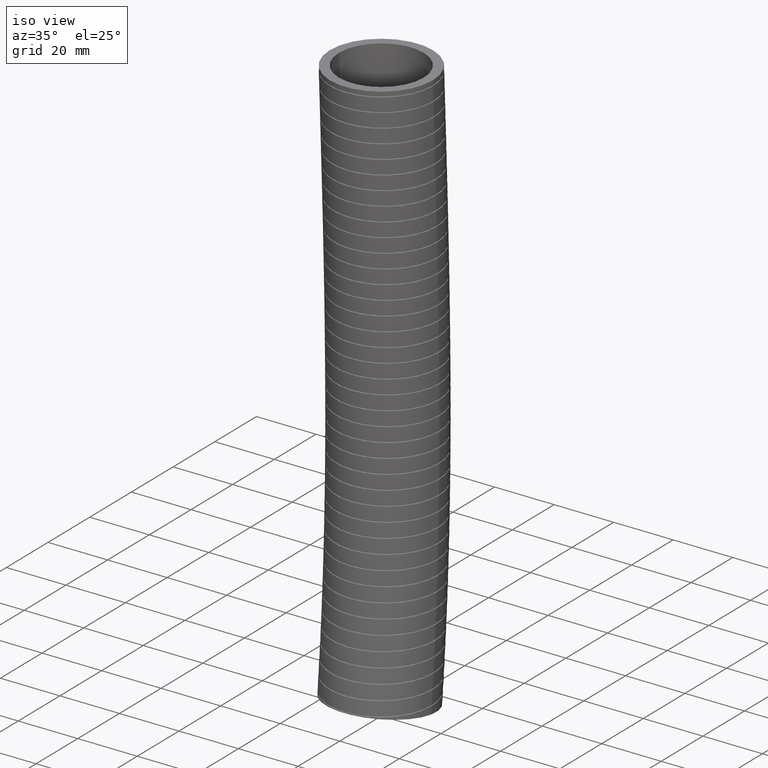
[diagram: clean part render]
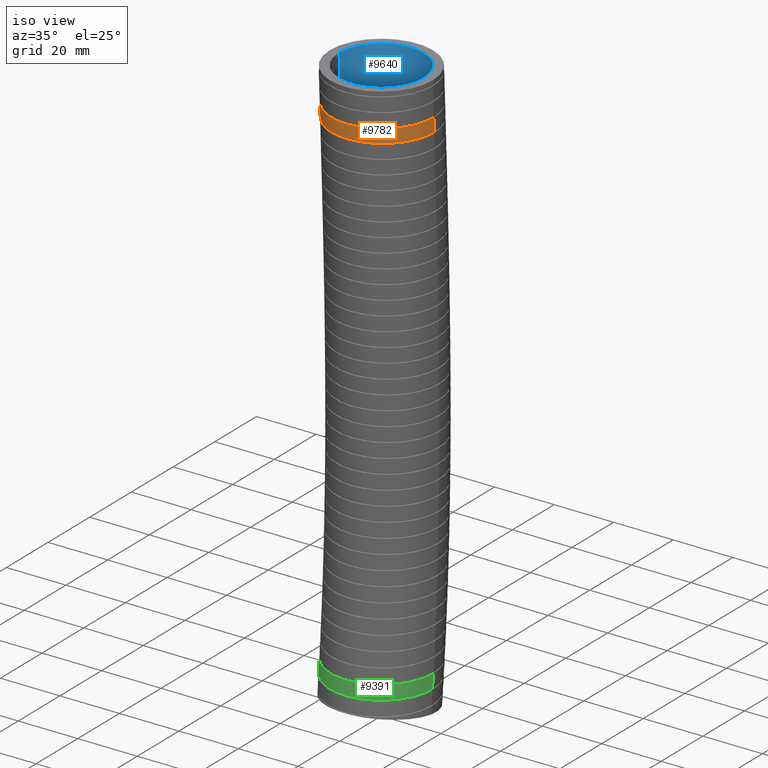
[diagram: same view with three faces highlighted in distinct colors, each labeled with its STEP entity id]
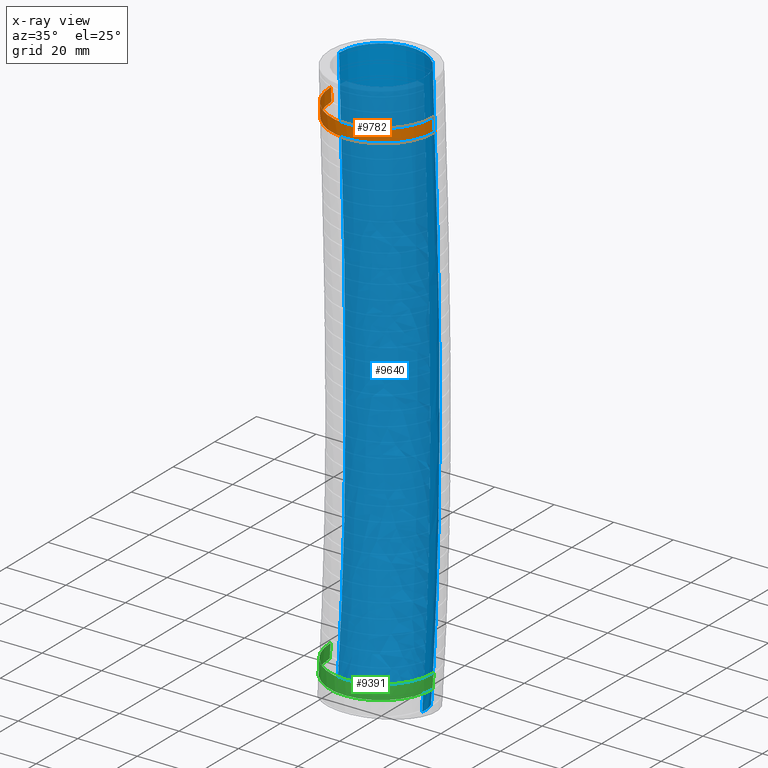
[diagram: x-ray of the same camera — body ghosted, the three highlighted faces saturated]
A machine part, iso view with three faces highlighted in distinct colors.
The next image is the same camera in x-ray (body ghosted, the three faces saturated) — at least one of them is partly hidden behind the body in this view.
Their STEP definitions:

[orange] entity #9782 — the highlighted face is a freeform B-spline surface patch.
#9770 = EDGE_CURVE ( 'NONE', #9779, #9855, #12664, .T. ) ;
#9771 = ORIENTED_EDGE ( 'NONE', *, *, #9776, .T. ) ;
#9772 = VERTEX_POINT ( 'NONE', #12719 ) ;
#9773 = ORIENTED_EDGE ( 'NONE', *, *, #9774, .T. ) ;
#9774 = EDGE_CURVE ( 'NONE', #9772, #9855, #12718, .T. ) ;
#9776 = EDGE_CURVE ( 'NONE', #9777, #9772, #12738, .T. ) ;
#9777 = VERTEX_POINT ( 'NONE', #12740 ) ;
#9778 = ORIENTED_EDGE ( 'NONE', *, *, #9780, .T. ) ;
#9779 = VERTEX_POINT ( 'NONE', #12739 ) ;
#9780 = EDGE_CURVE ( 'NONE', #9779, #9777, #12731, .T. ) ;
#9781 = EDGE_LOOP ( 'NONE', ( #9778, #9771, #9773, #9854 ) ) ;
#9782 = ADVANCED_FACE ( 'NONE', ( #12732 ), #12804, .T. ) ;
#9854 = ORIENTED_EDGE ( 'NONE', *, *, #9770, .F. ) ;
#9855 = VERTEX_POINT ( 'NONE', #14004 ) ;
#12218 = CARTESIAN_POINT ( 'NONE',  ( 0.6799999999999999400, 0.02779308123059746200, -0.6294462256570050300 ) ) ;
#12219 = CARTESIAN_POINT ( 'NONE',  ( 0.6799999999999999400, 0.02518663825251792100, -0.5695073967831598700 ) ) ;
#12224 = CARTESIAN_POINT ( 'NONE',  ( 0.6799999999999999400, 0.02256296003072200500, -0.5095678380935743100 ) ) ;
#12660 = CARTESIAN_POINT ( 'NONE',  ( 0.6799999999999999400, 0.01992697036791764600, -0.4496277580836141000 ) ) ;
#12664 = B_SPLINE_CURVE_WITH_KNOTS ( 'NONE', 3,
 ( #12660, #12224, #12219, #12218 ),
 .UNSPECIFIED., .F., .F.,
 ( 4, 4 ),
 ( 0.05927459239259669200, 0.08298070432547226300 ),
 .UNSPECIFIED. ) ;
#12682 = CARTESIAN_POINT ( 'NONE',  ( 0.4490832750532290900, -0.4847781656680695300, -0.6294462256569874900 ) ) ;
#12683 = CARTESIAN_POINT ( 'NONE',  ( 0.4148422961613814600, -0.5128644578127045100, -0.6294462256569868200 ) ) ;
#12684 = CARTESIAN_POINT ( 'NONE',  ( 0.3593694856400778100, -0.5499421772307190300, -0.6294462256569871600 ) ) ;
#12685 = CARTESIAN_POINT ( 'NONE',  ( 0.3400844115950525400, -0.5615067836964386900, -0.6294462256569873800 ) ) ;
#12686 = CARTESIAN_POINT ( 'NONE',  ( 0.3006078649715225900, -0.5825911508151058200, -0.6294462256569874900 ) ) ;
#12687 = CARTESIAN_POINT ( 'NONE',  ( 0.2804922200822254600, -0.5920857815798613600, -0.6294462256569868200 ) ) ;
#12688 = CARTESIAN_POINT ( 'NONE',  ( 0.2190447455636216600, -0.6175146647934306500, -0.6294462256569871600 ) ) ;
#12689 = CARTESIAN_POINT ( 'NONE',  ( 0.1766229336233708100, -0.6304232150329323000, -0.6294462256569877100 ) ) ;
#12690 = CARTESIAN_POINT ( 'NONE',  ( 0.1107376500968648100, -0.6435331015206950900, -0.6294462256569878200 ) ) ;
#12691 = CARTESIAN_POINT ( 'NONE',  ( 0.08851877295027432700, -0.6468174220725256800, -0.6294462256569878200 ) ) ;
#12692 = CARTESIAN_POINT ( 'NONE',  ( 0.04426765888311814300, -0.6511589084635891500, -0.6294462256569874900 ) ) ;
#12693 = CARTESIAN_POINT ( 'NONE',  ( -1.799952263858870900E-006, -0.6533163837076277900, -0.6294462256569877100 ) ) ;
#12694 = CARTESIAN_POINT ( 'NONE',  ( -0.04430751421283777400, -0.6511575191777250200, -0.6294462256569877100 ) ) ;
#12695 = CARTESIAN_POINT ( 'NONE',  ( -0.08863166418253415300, -0.6468038166577072500, -0.6294462256569878200 ) ) ;
#12696 = CARTESIAN_POINT ( 'NONE',  ( -0.1109249916365406400, -0.6435003727500451200, -0.6294462256569878200 ) ) ;
#12697 = CARTESIAN_POINT ( 'NONE',  ( -0.1766490131894011000, -0.6304088868941326600, -0.6294462256569878200 ) ) ;
#12698 = CARTESIAN_POINT ( 'NONE',  ( -0.2190437097763431900, -0.6175178411150883400, -0.6294462256569878200 ) ) ;
#12699 = CARTESIAN_POINT ( 'NONE',  ( -0.2805466825581863800, -0.5920618676585588400, -0.6294462256569878200 ) ) ;
#12700 = CARTESIAN_POINT ( 'NONE',  ( -0.3006970199978764000, -0.5825493930654219700, -0.6294462256569878200 ) ) ;
#12701 = CARTESIAN_POINT ( 'NONE',  ( -0.3402725735662930400, -0.5614003856309052200, -0.6294462256569877100 ) ) ;
#12702 = CARTESIAN_POINT ( 'NONE',  ( -0.3594501177668760200, -0.5498907714752021600, -0.6294462256569877100 ) ) ;
#12703 = CARTESIAN_POINT ( 'NONE',  ( -0.4148392366866166000, -0.5128615154497463400, -0.6294462256569879300 ) ) ;
#12704 = CARTESIAN_POINT ( 'NONE',  ( -0.4490929580019513100, -0.4847769163397763800, -0.6294462256569873800 ) ) ;
#12705 = CARTESIAN_POINT ( 'NONE',  ( -0.4964156950202832700, -0.4374896702113167900, -0.6294462256569874900 ) ) ;
#12706 = CARTESIAN_POINT ( 'NONE',  ( -0.5115641969656090600, -0.4207795941523687600, -0.6294462256569881600 ) ) ;
#12707 = CARTESIAN_POINT ( 'NONE',  ( -0.5398566089380274500, -0.3862933316505916500, -0.6294462256569881600 ) ) ;
#12708 = CARTESIAN_POINT ( 'NONE',  ( -0.5530728788073698800, -0.3684580017110121700, -0.6294462256569874900 ) ) ;
#12709 = CARTESIAN_POINT ( 'NONE',  ( -0.5899896865342197900, -0.3132122279413209200, -0.6294462256569877100 ) ) ;
#12710 = CARTESIAN_POINT ( 'NONE',  ( -0.6110161245962724100, -0.2740043131806800300, -0.6294462256569878200 ) ) ;
#12711 = CARTESIAN_POINT ( 'NONE',  ( -0.6453789839691023200, -0.1910778536466995700, -0.6294462256569874900 ) ) ;
#12712 = CARTESIAN_POINT ( 'NONE',  ( -0.6582185390639737600, -0.1485994830063240300, -0.6294462256569874900 ) ) ;
#12713 = CARTESIAN_POINT ( 'NONE',  ( -0.6712110563530141500, -0.08341673032555842200, -0.6294462256569873800 ) ) ;
#12714 = CARTESIAN_POINT ( 'NONE',  ( -0.6744897200703062800, -0.06144314492777706900, -0.6294462256569872700 ) ) ;
#12715 = CARTESIAN_POINT ( 'NONE',  ( -0.6788911976217521000, -0.01699193116940601900, -0.6294462256569872700 ) ) ;
#12716 = CARTESIAN_POINT ( 'NONE',  ( -0.6800000000000001600, 0.005521057326932862100, -0.6294462256569878200 ) ) ;
#12717 = CARTESIAN_POINT ( 'NONE',  ( -0.6799999999999999400, 0.02779308123059603300, -0.6294462256569877100 ) ) ;
#12718 = B_SPLINE_CURVE_WITH_KNOTS ( 'NONE', 3,
 ( #12717, #12716, #12715, #12714, #12713, #12712, #12711, #12710, #12709, #12708, #12707, #12706, #12705, #12704, #12703, #12702, #12701, #12700, #12699, #12698, #12697, #12696, #12695, #12694, #12693, #12692, #12691, #12690, #12689, #12688, #12687, #12686, #12685, #12684, #12683, #12682, #12755, #12754, #12753, #12752, #12751, #12750, #12749, #12748, #12747, #12746, #12745, #12744, #12743, #12742, #12741 ),
 .UNSPECIFIED., .F., .F.,
 ( 4, 2, 2, 2, 2, 2, 2, 2, 2, 2, 2, 2, 1, 2, 2, 2, 2, 2, 2, 2, 2, 2, 2, 2, 2, 4 ),
 ( 0.05457858651247898100, 0.05628426486145347900, 0.05798994321042798300, 0.06140129990837698400, 0.06481265660632598600, 0.06651833495530049000, 0.06822401330427498000, 0.07163537000222397500, 0.07334104835119847900, 0.07504672670017298300, 0.07845808339812197800, 0.08016376174709648200, 0.08186944009607097200, 0.08357511844504547600, 0.08528079679401998100, 0.08869215349196896100, 0.09039783184094346600, 0.09210351018991797000, 0.09551486688786695000, 0.09722054523684145500, 0.09892622358581594500, 0.1023375802837649300, 0.1040432586327394200, 0.1057489369817139200, 0.1074546153306884000, 0.1091602936796628900 ),
 .UNSPECIFIED. ) ;
#12719 = CARTESIAN_POINT ( 'NONE',  ( -0.6799999999999999400, 0.02779308123059603300, -0.6294462256569877100 ) ) ;
#12720 = CARTESIAN_POINT ( 'NONE',  ( 0.6099869724849380500, -0.2814442650780886200, -0.4496277580836047200 ) ) ;
#12721 = CARTESIAN_POINT ( 'NONE',  ( 0.6195155729626082900, -0.2613163356340988400, -0.4496277580836047800 ) ) ;
#12722 = CARTESIAN_POINT ( 'NONE',  ( 0.6450295814144726400, -0.1998633599014857100, -0.4496277580836048300 ) ) ;
#12723 = CARTESIAN_POINT ( 'NONE',  ( 0.6579722480004569500, -0.1574792380906345500, -0.4496277580836050600 ) ) ;
#12724 = CARTESIAN_POINT ( 'NONE',  ( 0.6711431566145765700, -0.09173004613759290500, -0.4496277580836049400 ) ) ;
#12725 = CARTESIAN_POINT ( 'NONE',  ( 0.6744721352215244900, -0.06945405780533633900, -0.4496277580836042200 ) ) ;
#12726 = CARTESIAN_POINT ( 'NONE',  ( 0.6788900057379706500, -0.02490135858963408300, -0.4496277580836042800 ) ) ;
#12727 = CARTESIAN_POINT ( 'NONE',  ( 0.6800000000000001600, -0.002533439406686469800, -0.4496277580836143300 ) ) ;
#12728 = CARTESIAN_POINT ( 'NONE',  ( 0.6799999999999999400, 0.01992697036791764600, -0.4496277580836141000 ) ) ;
#12731 = B_SPLINE_CURVE_WITH_KNOTS ( 'NONE', 3,
 ( #12728, #12727, #12726, #12725, #12724, #12723, #12722, #12721, #12720, #12803, #12802, #12801, #12800, #12799, #12798, #12797, #12796, #12795, #12794, #12793, #12792, #12791, #12790, #12789, #12788, #12787, #12786, #12785, #12784, #12783, #12782, #12781, #12780, #12779, #12778, #12777, #12776, #12775, #12774, #12773, #12772, #12771, #12770, #12769, #12768, #12767, #12766, #12765, #12764 ),
 .UNSPECIFIED., .F., .F.,
 ( 4, 2, 2, 2, 2, 2, 2, 2, 2, 2, 2, 2, 2, 2, 2, 2, 2, 2, 1, 2, 2, 2, 2, 2, 4 ),
 ( 0.0000000000000000000, 0.001705572483545439200, 0.003411144967090878400, 0.006822289934181759300, 0.008527862417727202400, 0.01023343490127264500, 0.01364457986836353100, 0.01535015235190897500, 0.01705572483545441500, 0.02046686980254529300, 0.02387801476963617400, 0.02558358725318161200, 0.02728915973672705100, 0.03070030470381792500, 0.03240587718736336100, 0.03411144967090878900, 0.03752259463799967300, 0.03922816712154510200, 0.04093373960509053700, 0.04263931208863597900, 0.04434488457218141400, 0.04775602953927228500, 0.04946160202281771300, 0.05116717450636314900, 0.05457831947345400500 ),
 .UNSPECIFIED. ) ;
#12732 = FACE_OUTER_BOUND ( 'NONE', #9781, .T. ) ;
#12734 = CARTESIAN_POINT ( 'NONE',  ( -0.6799999999999999400, 0.02779308123059603300, -0.6294462256569877100 ) ) ;
#12735 = CARTESIAN_POINT ( 'NONE',  ( -0.6799999999999999400, 0.02518663825251735800, -0.5695073967831448800 ) ) ;
#12736 = CARTESIAN_POINT ( 'NONE',  ( -0.6799999999999999400, 0.02256296003072155700, -0.5095678380935619900 ) ) ;
#12737 = CARTESIAN_POINT ( 'NONE',  ( -0.6799999999999999400, 0.01992697036791688700, -0.4496277580836045600 ) ) ;
#12738 = B_SPLINE_CURVE_WITH_KNOTS ( 'NONE', 3,
 ( #12737, #12736, #12735, #12734 ),
 .UNSPECIFIED., .F., .F.,
 ( 4, 4 ),
 ( 0.05927459239259544300, 0.08298070432546995900 ),
 .UNSPECIFIED. ) ;
#12739 = CARTESIAN_POINT ( 'NONE',  ( 0.6799999999999999400, 0.01992697036791764600, -0.4496277580836141000 ) ) ;
#12740 = CARTESIAN_POINT ( 'NONE',  ( -0.6799999999999999400, 0.01992697036791688700, -0.4496277580836045600 ) ) ;
#12741 = CARTESIAN_POINT ( 'NONE',  ( 0.6799999999999999400, 0.02779308123059746200, -0.6294462256570050300 ) ) ;
#12742 = CARTESIAN_POINT ( 'NONE',  ( 0.6800000000000002700, 0.005331277742522382700, -0.6294462256570051400 ) ) ;
#12743 = CARTESIAN_POINT ( 'NONE',  ( 0.6788795717051383500, -0.01714482769061451800, -0.6294462256569879300 ) ) ;
#12744 = CARTESIAN_POINT ( 'NONE',  ( 0.6744802535473317700, -0.06150309359550294700, -0.6294462256569874900 ) ) ;
#12745 = CARTESIAN_POINT ( 'NONE',  ( 0.6712052920480718900, -0.08344970815488175800, -0.6294462256569869400 ) ) ;
#12746 = CARTESIAN_POINT ( 'NONE',  ( 0.6625456114424619300, -0.1268867331032876900, -0.6294462256569871600 ) ) ;
#12747 = CARTESIAN_POINT ( 'NONE',  ( 0.6571608437327304300, -0.1483771329825456000, -0.6294462256569877100 ) ) ;
#12748 = CARTESIAN_POINT ( 'NONE',  ( 0.6442610753387130200, -0.1908973010724988600, -0.6294462256569878200 ) ) ;
#12749 = CARTESIAN_POINT ( 'NONE',  ( 0.6367180770633403800, -0.2119939380817464600, -0.6294462256569879300 ) ) ;
#12750 = CARTESIAN_POINT ( 'NONE',  ( 0.6109545834184801900, -0.2741224939970618400, -0.6294462256569877100 ) ) ;
#12751 = CARTESIAN_POINT ( 'NONE',  ( 0.5899890364559942100, -0.3132163049024557800, -0.6294462256569881600 ) ) ;
#12752 = CARTESIAN_POINT ( 'NONE',  ( 0.5530511425481499100, -0.3684889764356375500, -0.6294462256569883800 ) ) ;
#12753 = CARTESIAN_POINT ( 'NONE',  ( 0.5398168861069997400, -0.3863477511064956100, -0.6294462256569878200 ) ) ;
#12754 = CARTESIAN_POINT ( 'NONE',  ( 0.5114566454650471000, -0.4209046594744299000, -0.6294462256569877100 ) ) ;
#12755 = CARTESIAN_POINT ( 'NONE',  ( 0.4963240177789565200, -0.4375854789764352400, -0.6294462256569874900 ) ) ;
#12764 = CARTESIAN_POINT ( 'NONE',  ( -0.6799999999999999400, 0.01992697036791688700, -0.4496277580836045600 ) ) ;
#12765 = CARTESIAN_POINT ( 'NONE',  ( -0.6800000000000001600, -0.02461430556591733300, -0.4496277580836045000 ) ) ;
#12766 = CARTESIAN_POINT ( 'NONE',  ( -0.6756657721922976200, -0.06868702371734571000, -0.4496277580836045600 ) ) ;
#12767 = CARTESIAN_POINT ( 'NONE',  ( -0.6627006705584698200, -0.1340973271029742800, -0.4496277580836047200 ) ) ;
#12768 = CARTESIAN_POINT ( 'NONE',  ( -0.6572640184441799200, -0.1558788034686088600, -0.4496277580836045000 ) ) ;
#12769 = CARTESIAN_POINT ( 'NONE',  ( -0.6442727833556550800, -0.1987449357262618400, -0.4496277580836045000 ) ) ;
#12770 = CARTESIAN_POINT ( 'NONE',  ( -0.6367696977968427800, -0.2196974777254845100, -0.4496277580836040600 ) ) ;
#12771 = CARTESIAN_POINT ( 'NONE',  ( -0.6113276060805725700, -0.2811562523606990800, -0.4496277580836040600 ) ) ;
#12772 = CARTESIAN_POINT ( 'NONE',  ( -0.5904836941222899600, -0.3202769548246569600, -0.4496277580836043300 ) ) ;
#12773 = CARTESIAN_POINT ( 'NONE',  ( -0.5532359341213020100, -0.3761048723061304900, -0.4496277580836044500 ) ) ;
#12774 = CARTESIAN_POINT ( 'NONE',  ( -0.5398399764177503900, -0.3941736335064705000, -0.4496277580836042800 ) ) ;
#12775 = CARTESIAN_POINT ( 'NONE',  ( -0.5116260585604066600, -0.4285675430631597500, -0.4496277580836042800 ) ) ;
#12776 = CARTESIAN_POINT ( 'NONE',  ( -0.4818608682852570400, -0.4614194365356971100, -0.4496277580836037200 ) ) ;
#12777 = CARTESIAN_POINT ( 'NONE',  ( -0.4490352108271672400, -0.4912291244182036600, -0.4496277580836044500 ) ) ;
#12778 = CARTESIAN_POINT ( 'NONE',  ( -0.4146560352668167100, -0.5194945639319451500, -0.4496277580836045000 ) ) ;
#12779 = CARTESIAN_POINT ( 'NONE',  ( -0.3965834116093594500, -0.5329223586020359600, -0.4496277580836045600 ) ) ;
#12780 = CARTESIAN_POINT ( 'NONE',  ( -0.3408344136631869000, -0.5702042751514552200, -0.4496277580836044500 ) ) ;
#12781 = CARTESIAN_POINT ( 'NONE',  ( -0.3017463943948713300, -0.5910904427143099900, -0.4496277580836046100 ) ) ;
#12782 = CARTESIAN_POINT ( 'NONE',  ( -0.2402993160450817800, -0.6166073919537080600, -0.4496277580836048300 ) ) ;
#12783 = CARTESIAN_POINT ( 'NONE',  ( -0.2193444255524396300, -0.6241373951882441800, -0.4496277580836047800 ) ) ;
#12784 = CARTESIAN_POINT ( 'NONE',  ( -0.1764592640191205200, -0.6371835093550655100, -0.4496277580836048900 ) ) ;
#12785 = CARTESIAN_POINT ( 'NONE',  ( -0.1547170849374092100, -0.6426335880685251100, -0.4496277580836045000 ) ) ;
#12786 = CARTESIAN_POINT ( 'NONE',  ( -0.08934824173009541000, -0.6556638212188992100, -0.4496277580836044500 ) ) ;
#12787 = CARTESIAN_POINT ( 'NONE',  ( -0.04527800130929600400, -0.6600493699881465600, -0.4496277580836045000 ) ) ;
#12788 = CARTESIAN_POINT ( 'NONE',  ( 0.02157031182426120600, -0.6601194117064008700, -0.4496277580836045600 ) ) ;
#12789 = CARTESIAN_POINT ( 'NONE',  ( 0.04409248553034762100, -0.6590323154263321200, -0.4496277580836048300 ) ) ;
#12790 = CARTESIAN_POINT ( 'NONE',  ( 0.08851713039591413400, -0.6546797079105463000, -0.4496277580836048300 ) ) ;
#12791 = CARTESIAN_POINT ( 'NONE',  ( 0.1104843328483766000, -0.6514260479412153900, -0.4496277580836048300 ) ) ;
#12792 = CARTESIAN_POINT ( 'NONE',  ( 0.1756670992451141200, -0.6385056039496471700, -0.4496277580836047200 ) ) ;
#12793 = CARTESIAN_POINT ( 'NONE',  ( 0.2181708900026252100, -0.6257104202641473600, -0.4496277580836043300 ) ) ;
#12794 = CARTESIAN_POINT ( 'NONE',  ( 0.3011952257981445100, -0.5914032518722141000, -0.4496277580836043300 ) ) ;
#12795 = CARTESIAN_POINT ( 'NONE',  ( 0.3403432021172875200, -0.5704566971369329200, -0.4496277580836042800 ) ) ;
#12796 = CARTESIAN_POINT ( 'NONE',  ( 0.3956311039497432700, -0.5335960238357238000, -0.4496277580836043300 ) ) ;
#12797 = CARTESIAN_POINT ( 'NONE',  ( 0.4134857554574165600, -0.5203947716540527900, -0.4496277580836047200 ) ) ;
#12798 = CARTESIAN_POINT ( 'NONE',  ( 0.4480197494472026900, -0.4921221576436919400, -0.4496277580836045600 ) ) ;
#12799 = CARTESIAN_POINT ( 'NONE',  ( 0.4647410158951376100, -0.4769929439283782100, -0.4496277580836042800 ) ) ;
#12800 = CARTESIAN_POINT ( 'NONE',  ( 0.5120467733699959300, -0.4297490511758506000, -0.4496277580836044500 ) ) ;
#12801 = CARTESIAN_POINT ( 'NONE',  ( 0.5401661802324127000, -0.3955324250622756500, -0.4496277580836039500 ) ) ;
#12802 = CARTESIAN_POINT ( 'NONE',  ( 0.5772664673277551100, -0.3401645095591475700, -0.4496277580836042200 ) ) ;
#12803 = CARTESIAN_POINT ( 'NONE',  ( 0.5888154850222829800, -0.3209642122334596700, -0.4496277580836047800 ) ) ;
#12804 =( BOUNDED_SURFACE ( )  B_SPLINE_SURFACE ( 3, 3, ( 
 ( #12847, #12846, #12845, #12844, #12843, #12842 ),
 ( #12841, #12840, #12839, #12838, #12837, #12836 ),
 ( #12835, #12834, #12833, #12832, #12831, #12830 ),
 ( #12829, #12828, #12827, #12826, #12825, #12824 ),
 ( #12823, #12822, #12821, #12820, #12819, #12818 ),
 ( #12817, #12816, #12815, #12814, #12813, #12812 ),
 ( #12875, #12874, #12873, #12872, #12871, #12870 ) ),
 .UNSPECIFIED., .F., .F., .F. ) 
 B_SPLINE_SURFACE_WITH_KNOTS ( ( 4, 3, 4 ),
 ( 4, 1, 1, 4 ),
 ( 0.0000000000000000000, 0.5000000000000000000, 1.000000000000000000 ),
 ( 0.0000000000000000000, 0.5599999999999998300, 0.9244357691435686200, 1.000000000000000000 ),
 .UNSPECIFIED. ) 
 GEOMETRIC_REPRESENTATION_ITEM ( )  RATIONAL_B_SPLINE_SURFACE ( (
 ( 1.000000000000000000, 1.000000000000000000, 0.9999999999999998900, 1.000000000000000000, 1.000000000000000000, 1.000000000000000000),
 ( 0.3333333333333333100, 0.3333333333333333100, 0.3333333333333333100, 0.3333333333333333100, 0.3333333333333333100, 0.3333333333333333100),
 ( 0.3333333333333333100, 0.3333333333333333100, 0.3333333333333333100, 0.3333333333333333100, 0.3333333333333333100, 0.3333333333333333100),
 ( 1.000000000000000000, 1.000000000000000000, 0.9999999999999998900, 1.000000000000000000, 1.000000000000000000, 1.000000000000000000),
 ( 0.3333333333333333100, 0.3333333333333333100, 0.3333333333333333100, 0.3333333333333333100, 0.3333333333333333100, 0.3333333333333333100),
 ( 0.3333333333333333100, 0.3333333333333333100, 0.3333333333333333100, 0.3333333333333333100, 0.3333333333333333100, 0.3333333333333333100),
 ( 1.000000000000000000, 1.000000000000000000, 0.9999999999999998900, 1.000000000000000000, 1.000000000000000000, 1.000000000000000000) ) ) 
 REPRESENTATION_ITEM ( '' )  SURFACE ( )  );
#12812 = CARTESIAN_POINT ( 'NONE',  ( 0.6799999999999998300, 1.317559051196987700, -7.753533657777190100 ) ) ;
#12813 = CARTESIAN_POINT ( 'NONE',  ( 0.6799999999999998300, 1.335631108747101300, -7.555709326537000300 ) ) ;
#12814 = CARTESIAN_POINT ( 'NONE',  ( 0.6800000000000000500, 1.440862184772448300, -6.403805776945382000 ) ) ;
#12815 = CARTESIAN_POINT ( 'NONE',  ( 0.6799999999999998300, 1.528843047282568500, -3.785687112797655500 ) ) ;
#12816 = CARTESIAN_POINT ( 'NONE',  ( 0.6800000000000000500, 1.423695653556495700, -1.428141807974481600 ) ) ;
#12817 = CARTESIAN_POINT ( 'NONE',  ( 0.6800000000000000500, 1.360000000000000100, 0.0000000000000000000 ) ) ;
#12818 = CARTESIAN_POINT ( 'NONE',  ( -0.6799999999999997200, 1.317559051196987700, -7.753533657777190100 ) ) ;
#12819 = CARTESIAN_POINT ( 'NONE',  ( -0.6799999999999998300, 1.335631108747101300, -7.555709326537000300 ) ) ;
#12820 = CARTESIAN_POINT ( 'NONE',  ( -0.6799999999999998300, 1.440862184772448300, -6.403805776945382000 ) ) ;
#12821 = CARTESIAN_POINT ( 'NONE',  ( -0.6799999999999993800, 1.528843047282568500, -3.785687112797655500 ) ) ;
#12822 = CARTESIAN_POINT ( 'NONE',  ( -0.6799999999999997200, 1.423695653556495700, -1.428141807974481600 ) ) ;
#12823 = CARTESIAN_POINT ( 'NONE',  ( -0.6799999999999998300, 1.360000000000000100, 0.0000000000000000000 ) ) ;
#12824 = CARTESIAN_POINT ( 'NONE',  ( -0.6799999999999998300, -0.02999999999999994300, -7.570000000000000300 ) ) ;
#12825 = CARTESIAN_POINT ( 'NONE',  ( -0.6799999999999998300, -0.01268304244353365600, -7.380027536167250300 ) ) ;
#12826 = CARTESIAN_POINT ( 'NONE',  ( -0.6799999999999998300, 0.08815119140610093400, -6.273844317744462300 ) ) ;
#12827 = CARTESIAN_POINT ( 'NONE',  ( -0.6799999999999998300, 0.1669887239008315800, -3.753425867331408000 ) ) ;
#12828 = CARTESIAN_POINT ( 'NONE',  ( -0.6799999999999999400, 0.06299611430032946200, -1.415971326882179200 ) ) ;
#12829 = CARTESIAN_POINT ( 'NONE',  ( -0.6799999999999999400, 8.327598234202001900E-017, 0.0000000000000000000 ) ) ;
#12830 = CARTESIAN_POINT ( 'NONE',  ( -0.6800000000000000500, -1.377559051196987500, -7.386466342222807800 ) ) ;
#12831 = CARTESIAN_POINT ( 'NONE',  ( -0.6800000000000000500, -1.360997193634168900, -7.204345745797499300 ) ) ;
#12832 = CARTESIAN_POINT ( 'NONE',  ( -0.6800000000000000500, -1.264559801960247100, -6.143882858543539900 ) ) ;
#12833 = CARTESIAN_POINT ( 'NONE',  ( -0.6799999999999998300, -1.194865599480906100, -3.721164621865159700 ) ) ;
#12834 = CARTESIAN_POINT ( 'NONE',  ( -0.6800000000000000500, -1.297703424955836600, -1.403800845789877400 ) ) ;
#12835 = CARTESIAN_POINT ( 'NONE',  ( -0.6800000000000000500, -1.360000000000000100, 0.0000000000000000000 ) ) ;
#12836 = CARTESIAN_POINT ( 'NONE',  ( 0.6799999999999998300, -1.377559051196987500, -7.386466342222807800 ) ) ;
#12837 = CARTESIAN_POINT ( 'NONE',  ( 0.6799999999999998300, -1.360997193634168900, -7.204345745797499300 ) ) ;
#12838 = CARTESIAN_POINT ( 'NONE',  ( 0.6800000000000000500, -1.264559801960247100, -6.143882858543539900 ) ) ;
#12839 = CARTESIAN_POINT ( 'NONE',  ( 0.6799999999999998300, -1.194865599480906100, -3.721164621865159700 ) ) ;
#12840 = CARTESIAN_POINT ( 'NONE',  ( 0.6800000000000000500, -1.297703424955836600, -1.403800845789877400 ) ) ;
#12841 = CARTESIAN_POINT ( 'NONE',  ( 0.6800000000000000500, -1.360000000000000100, 0.0000000000000000000 ) ) ;
#12842 = CARTESIAN_POINT ( 'NONE',  ( 0.6799999999999998300, -0.03000000000000002700, -7.570000000000000300 ) ) ;
#12843 = CARTESIAN_POINT ( 'NONE',  ( 0.6799999999999998300, -0.01268304244353373300, -7.380027536167250300 ) ) ;
#12844 = CARTESIAN_POINT ( 'NONE',  ( 0.6799999999999998300, 0.08815119140610085100, -6.273844317744462300 ) ) ;
#12845 = CARTESIAN_POINT ( 'NONE',  ( 0.6799999999999998300, 0.1669887239008314700, -3.753425867331408000 ) ) ;
#12846 = CARTESIAN_POINT ( 'NONE',  ( 0.6799999999999999400, 0.06299611430032937800, -1.415971326882179200 ) ) ;
#12847 = CARTESIAN_POINT ( 'NONE',  ( 0.6799999999999999400, 0.0000000000000000000, 0.0000000000000000000 ) ) ;
#12870 = CARTESIAN_POINT ( 'NONE',  ( 0.6799999999999998300, -0.03000000000000002700, -7.570000000000000300 ) ) ;
#12871 = CARTESIAN_POINT ( 'NONE',  ( 0.6799999999999998300, -0.01268304244353373300, -7.380027536167250300 ) ) ;
#12872 = CARTESIAN_POINT ( 'NONE',  ( 0.6799999999999998300, 0.08815119140610085100, -6.273844317744462300 ) ) ;
#12873 = CARTESIAN_POINT ( 'NONE',  ( 0.6799999999999998300, 0.1669887239008314700, -3.753425867331408000 ) ) ;
#12874 = CARTESIAN_POINT ( 'NONE',  ( 0.6799999999999999400, 0.06299611430032937800, -1.415971326882179200 ) ) ;
#12875 = CARTESIAN_POINT ( 'NONE',  ( 0.6799999999999999400, 0.0000000000000000000, 0.0000000000000000000 ) ) ;
#14004 = CARTESIAN_POINT ( 'NONE',  ( 0.6799999999999999400, 0.02779308123059746200, -0.6294462256570050300 ) ) ;

[blue] entity #9640 — the highlighted face is a freeform B-spline surface patch.
#8788 = CARTESIAN_POINT ( 'NONE',  ( 0.5600000000000000500, 0.0000000000000000000, 0.0000000000000000000 ) ) ;
#8789 = DIRECTION ( 'NONE',  ( 1.000000000000000000, 0.0000000000000000000, 0.0000000000000000000 ) ) ;
#8790 = DIRECTION ( 'NONE',  ( 0.0000000000000000000, 0.0000000000000000000, 1.000000000000000000 ) ) ;
#8791 = CARTESIAN_POINT ( 'NONE',  ( 0.0000000000000000000, 0.0000000000000000000, 0.0000000000000000000 ) ) ;
#8792 = AXIS2_PLACEMENT_3D ( 'NONE', #8791, #8790, #8789 ) ;
#8793 = CIRCLE ( 'NONE', #8792, 0.5600000000000000500 ) ;
#8794 = CARTESIAN_POINT ( 'NONE',  ( -0.5600000000000000500, 6.858022075225177600E-017, 0.0000000000000000000 ) ) ;
#8795 = CARTESIAN_POINT ( 'NONE',  ( -0.5600000000000000500, -0.02999999999999995700, -7.570000000000000300 ) ) ;
#8880 = FACE_OUTER_BOUND ( 'NONE', #9639, .T. ) ;
#9603 = ORIENTED_EDGE ( 'NONE', *, *, #9669, .F. ) ;
#9604 = VERTEX_POINT ( 'NONE', #8795 ) ;
#9605 = VERTEX_POINT ( 'NONE', #8794 ) ;
#9606 = EDGE_CURVE ( 'NONE', #9609, #9605, #8793, .T. ) ;
#9607 = ORIENTED_EDGE ( 'NONE', *, *, #9606, .T. ) ;
#9609 = VERTEX_POINT ( 'NONE', #8788 ) ;
#9639 = EDGE_LOOP ( 'NONE', ( #9607, #9688, #9603, #9683 ) ) ;
#9640 = ADVANCED_FACE ( 'NONE', ( #8880 ), #12002, .F. ) ;
#9669 = EDGE_CURVE ( 'NONE', #9671, #9604, #12142, .T. ) ;
#9671 = VERTEX_POINT ( 'NONE', #12138 ) ;
#9683 = ORIENTED_EDGE ( 'NONE', *, *, #9684, .F. ) ;
#9684 = EDGE_CURVE ( 'NONE', #9609, #9671, #12307, .T. ) ;
#9687 = EDGE_CURVE ( 'NONE', #9605, #9604, #12329, .T. ) ;
#9688 = ORIENTED_EDGE ( 'NONE', *, *, #9687, .T. ) ;
#12002 =( BOUNDED_SURFACE ( )  B_SPLINE_SURFACE ( 3, 3, ( 
 ( #12044, #12043, #12042, #12041, #12040, #12039 ),
 ( #12038, #12037, #12036, #12035, #12034, #12033 ),
 ( #12032, #12031, #12030, #12029, #12028, #12027 ),
 ( #12026, #12025, #12024, #12023, #12022, #12021 ),
 ( #12020, #12019, #12018, #12017, #12016, #12015 ),
 ( #12014, #12013, #12012, #12011, #12010, #12075 ),
 ( #12074, #12073, #12072, #12071, #12070, #12069 ) ),
 .UNSPECIFIED., .F., .F., .F. ) 
 B_SPLINE_SURFACE_WITH_KNOTS ( ( 4, 3, 4 ),
 ( 4, 1, 1, 4 ),
 ( 0.0000000000000000000, 0.5000000000000000000, 1.000000000000000000 ),
 ( 0.0000000000000000000, 0.5599999999999998300, 0.9244357691435686200, 1.000000000000000000 ),
 .UNSPECIFIED. ) 
 GEOMETRIC_REPRESENTATION_ITEM ( )  RATIONAL_B_SPLINE_SURFACE ( (
 ( 1.000000000000000000, 1.000000000000000000, 0.9999999999999998900, 1.000000000000000000, 1.000000000000000000, 1.000000000000000000),
 ( 0.3333333333333333100, 0.3333333333333333100, 0.3333333333333333100, 0.3333333333333333100, 0.3333333333333333100, 0.3333333333333333100),
 ( 0.3333333333333333100, 0.3333333333333333100, 0.3333333333333333100, 0.3333333333333333100, 0.3333333333333333100, 0.3333333333333333100),
 ( 1.000000000000000000, 1.000000000000000000, 0.9999999999999998900, 1.000000000000000000, 1.000000000000000000, 1.000000000000000000),
 ( 0.3333333333333333100, 0.3333333333333333100, 0.3333333333333333100, 0.3333333333333333100, 0.3333333333333333100, 0.3333333333333333100),
 ( 0.3333333333333333100, 0.3333333333333333100, 0.3333333333333333100, 0.3333333333333333100, 0.3333333333333333100, 0.3333333333333333100),
 ( 1.000000000000000000, 1.000000000000000000, 0.9999999999999998900, 1.000000000000000000, 1.000000000000000000, 1.000000000000000000) ) ) 
 REPRESENTATION_ITEM ( '' )  SURFACE ( )  );
#12010 = CARTESIAN_POINT ( 'NONE',  ( 0.5600000000000000500, 1.097693317360518600, -7.524706657648220400 ) ) ;
#12011 = CARTESIAN_POINT ( 'NONE',  ( 0.5600000000000000500, 1.202148480060740000, -6.380871401792278500 ) ) ;
#12012 = CARTESIAN_POINT ( 'NONE',  ( 0.5599999999999999400, 1.288515813744614700, -3.779993951833022300 ) ) ;
#12013 = CARTESIAN_POINT ( 'NONE',  ( 0.5599999999999999400, 1.183572205452466000, -1.425994076017016000 ) ) ;
#12014 = CARTESIAN_POINT ( 'NONE',  ( 0.5600000000000000500, 1.120000000000000100, 0.0000000000000000000 ) ) ;
#12015 = CARTESIAN_POINT ( 'NONE',  ( -0.5599999999999997200, 1.079754512750460600, -7.721145365228273300 ) ) ;
#12016 = CARTESIAN_POINT ( 'NONE',  ( -0.5599999999999997200, 1.097693317360518600, -7.524706657648220400 ) ) ;
#12017 = CARTESIAN_POINT ( 'NONE',  ( -0.5599999999999996100, 1.202148480060740000, -6.380871401792278500 ) ) ;
#12018 = CARTESIAN_POINT ( 'NONE',  ( -0.5599999999999997200, 1.288515813744614700, -3.779993951833022300 ) ) ;
#12019 = CARTESIAN_POINT ( 'NONE',  ( -0.5599999999999999400, 1.183572205452466000, -1.425994076017016000 ) ) ;
#12020 = CARTESIAN_POINT ( 'NONE',  ( -0.5599999999999999400, 1.120000000000000100, 0.0000000000000000000 ) ) ;
#12021 = CARTESIAN_POINT ( 'NONE',  ( -0.5599999999999999400, -0.02999999999999995700, -7.570000000000000300 ) ) ;
#12022 = CARTESIAN_POINT ( 'NONE',  ( -0.5599999999999999400, -0.01268304244353366500, -7.380027536167250300 ) ) ;
#12023 = CARTESIAN_POINT ( 'NONE',  ( -0.5599999999999999400, 0.08815119140610092100, -6.273844317744462300 ) ) ;
#12024 = CARTESIAN_POINT ( 'NONE',  ( -0.5600000000000002800, 0.1669887239008315800, -3.753425867331408000 ) ) ;
#12025 = CARTESIAN_POINT ( 'NONE',  ( -0.5600000000000000500, 0.06299611430032946200, -1.415971326882179200 ) ) ;
#12026 = CARTESIAN_POINT ( 'NONE',  ( -0.5600000000000000500, 6.858022075225177600E-017, 0.0000000000000000000 ) ) ;
#12027 = CARTESIAN_POINT ( 'NONE',  ( -0.5600000000000000500, -1.139754512750460200, -7.418854634771725500 ) ) ;
#12028 = CARTESIAN_POINT ( 'NONE',  ( -0.5600000000000000500, -1.123059402247585700, -7.235348414686279200 ) ) ;
#12029 = CARTESIAN_POINT ( 'NONE',  ( -0.5600000000000000500, -1.025846097248538100, -6.166817233696645100 ) ) ;
#12030 = CARTESIAN_POINT ( 'NONE',  ( -0.5600000000000000500, -0.9545383659429520500, -3.726857782829791500 ) ) ;
#12031 = CARTESIAN_POINT ( 'NONE',  ( -0.5600000000000001600, -1.057579976851807000, -1.405948577747342400 ) ) ;
#12032 = CARTESIAN_POINT ( 'NONE',  ( -0.5600000000000001600, -1.119999999999999900, 0.0000000000000000000 ) ) ;
#12033 = CARTESIAN_POINT ( 'NONE',  ( 0.5599999999999999400, -1.139754512750460200, -7.418854634771725500 ) ) ;
#12034 = CARTESIAN_POINT ( 'NONE',  ( 0.5600000000000000500, -1.123059402247585700, -7.235348414686279200 ) ) ;
#12035 = CARTESIAN_POINT ( 'NONE',  ( 0.5600000000000000500, -1.025846097248538100, -6.166817233696645100 ) ) ;
#12036 = CARTESIAN_POINT ( 'NONE',  ( 0.5599999999999999400, -0.9545383659429523800, -3.726857782829791500 ) ) ;
#12037 = CARTESIAN_POINT ( 'NONE',  ( 0.5599999999999999400, -1.057579976851807500, -1.405948577747342400 ) ) ;
#12038 = CARTESIAN_POINT ( 'NONE',  ( 0.5600000000000000500, -1.120000000000000100, 0.0000000000000000000 ) ) ;
#12039 = CARTESIAN_POINT ( 'NONE',  ( 0.5599999999999999400, -0.03000000000000002700, -7.570000000000000300 ) ) ;
#12040 = CARTESIAN_POINT ( 'NONE',  ( 0.5599999999999999400, -0.01268304244353373300, -7.380027536167250300 ) ) ;
#12041 = CARTESIAN_POINT ( 'NONE',  ( 0.5599999999999999400, 0.08815119140610085100, -6.273844317744462300 ) ) ;
#12042 = CARTESIAN_POINT ( 'NONE',  ( 0.5600000000000002800, 0.1669887239008314700, -3.753425867331408000 ) ) ;
#12043 = CARTESIAN_POINT ( 'NONE',  ( 0.5600000000000000500, 0.06299611430032937800, -1.415971326882179200 ) ) ;
#12044 = CARTESIAN_POINT ( 'NONE',  ( 0.5600000000000000500, 0.0000000000000000000, 0.0000000000000000000 ) ) ;
#12069 = CARTESIAN_POINT ( 'NONE',  ( 0.5599999999999999400, -0.03000000000000002700, -7.570000000000000300 ) ) ;
#12070 = CARTESIAN_POINT ( 'NONE',  ( 0.5599999999999999400, -0.01268304244353373300, -7.380027536167250300 ) ) ;
#12071 = CARTESIAN_POINT ( 'NONE',  ( 0.5599999999999999400, 0.08815119140610085100, -6.273844317744462300 ) ) ;
#12072 = CARTESIAN_POINT ( 'NONE',  ( 0.5600000000000002800, 0.1669887239008314700, -3.753425867331408000 ) ) ;
#12073 = CARTESIAN_POINT ( 'NONE',  ( 0.5600000000000000500, 0.06299611430032937800, -1.415971326882179200 ) ) ;
#12074 = CARTESIAN_POINT ( 'NONE',  ( 0.5600000000000000500, 0.0000000000000000000, 0.0000000000000000000 ) ) ;
#12075 = CARTESIAN_POINT ( 'NONE',  ( 0.5599999999999999400, 1.079754512750460600, -7.721145365228273300 ) ) ;
#12138 = CARTESIAN_POINT ( 'NONE',  ( 0.5599999999999999400, -0.02999999999999998800, -7.570000000000000300 ) ) ;
#12139 = DIRECTION ( 'NONE',  ( 1.000000000000000000, 0.0000000000000000000, 0.0000000000000000000 ) ) ;
#12140 = DIRECTION ( 'NONE',  ( 0.0000000000000000000, 0.1349512189538165900, 0.9908522435271967000 ) ) ;
#12141 = AXIS2_PLACEMENT_3D ( 'NONE', #12149, #12140, #12139 ) ;
#12142 = CIRCLE ( 'NONE', #12141, 0.5599999999999999400 ) ;
#12149 = CARTESIAN_POINT ( 'NONE',  ( 0.0000000000000000000, -0.02999999999999998800, -7.570000000000000300 ) ) ;
#12296 = CARTESIAN_POINT ( 'NONE',  ( 0.5599999999999999400, -0.02999999999999998800, -7.570000000000000300 ) ) ;
#12297 = CARTESIAN_POINT ( 'NONE',  ( 0.5599999999999999400, -0.01268304244353373300, -7.380027536167250300 ) ) ;
#12298 = CARTESIAN_POINT ( 'NONE',  ( 0.5599999999999999400, 0.08815119140610085100, -6.273844317744462300 ) ) ;
#12299 = CARTESIAN_POINT ( 'NONE',  ( 0.5600000000000001600, 0.1669887239008314700, -3.753425867331407600 ) ) ;
#12300 = CARTESIAN_POINT ( 'NONE',  ( 0.5600000000000000500, 0.06299611430032937800, -1.415971326882179200 ) ) ;
#12301 = CARTESIAN_POINT ( 'NONE',  ( 0.5600000000000000500, 0.0000000000000000000, 0.0000000000000000000 ) ) ;
#12307 = B_SPLINE_CURVE_WITH_KNOTS ( 'NONE', 3,
 ( #12301, #12300, #12299, #12298, #12297, #12296 ),
 .UNSPECIFIED., .F., .F.,
 ( 4, 1, 1, 4 ),
 ( 0.0000000000000000000, 0.5599999999999998300, 0.9244357691435686200, 1.000000000000000000 ),
 .UNSPECIFIED. ) ;
#12329 = B_SPLINE_CURVE_WITH_KNOTS ( 'NONE', 3,
 ( #12394, #12393, #12392, #12391, #12390, #12389 ),
 .UNSPECIFIED., .F., .F.,
 ( 4, 1, 1, 4 ),
 ( 0.0000000000000000000, 0.5599999999999998300, 0.9244357691435686200, 1.000000000000000000 ),
 .UNSPECIFIED. ) ;
#12389 = CARTESIAN_POINT ( 'NONE',  ( -0.5600000000000000500, -0.02999999999999995700, -7.570000000000000300 ) ) ;
#12390 = CARTESIAN_POINT ( 'NONE',  ( -0.5599999999999999400, -0.01268304244353366500, -7.380027536167250300 ) ) ;
#12391 = CARTESIAN_POINT ( 'NONE',  ( -0.5599999999999999400, 0.08815119140610092100, -6.273844317744462300 ) ) ;
#12392 = CARTESIAN_POINT ( 'NONE',  ( -0.5600000000000001600, 0.1669887239008315800, -3.753425867331407600 ) ) ;
#12393 = CARTESIAN_POINT ( 'NONE',  ( -0.5600000000000000500, 0.06299611430032946200, -1.415971326882179200 ) ) ;
#12394 = CARTESIAN_POINT ( 'NONE',  ( -0.5600000000000000500, 6.858022075225177600E-017, 0.0000000000000000000 ) ) ;

[green] entity #9391 — the highlighted face is a freeform B-spline surface patch.
#7140 = CARTESIAN_POINT ( 'NONE',  ( -0.6799999999999998300, 0.1669887239008315800, -3.753425867331408000 ) ) ;
#7141 = CARTESIAN_POINT ( 'NONE',  ( -0.6799999999999999400, 0.06299611430032946200, -1.415971326882179200 ) ) ;
#7142 = CARTESIAN_POINT ( 'NONE',  ( -0.6799999999999999400, 8.327598234202001900E-017, 0.0000000000000000000 ) ) ;
#7143 = CARTESIAN_POINT ( 'NONE',  ( -0.6800000000000000500, -1.377559051196987500, -7.386466342222807800 ) ) ;
#7144 = CARTESIAN_POINT ( 'NONE',  ( -0.6800000000000000500, -1.360997193634168900, -7.204345745797499300 ) ) ;
#7145 = CARTESIAN_POINT ( 'NONE',  ( -0.6800000000000000500, -1.264559801960247100, -6.143882858543539900 ) ) ;
#7146 = CARTESIAN_POINT ( 'NONE',  ( -0.6799999999999998300, -1.194865599480906100, -3.721164621865159700 ) ) ;
#7148 = CARTESIAN_POINT ( 'NONE',  ( -0.6800000000000000500, -1.297703424955836600, -1.403800845789877400 ) ) ;
#7149 = CARTESIAN_POINT ( 'NONE',  ( -0.6800000000000000500, -1.360000000000000100, 0.0000000000000000000 ) ) ;
#7244 = CARTESIAN_POINT ( 'NONE',  ( -0.6799999999999998300, 0.01217693932701256800, -7.094860042461001500 ) ) ;
#7256 = CARTESIAN_POINT ( 'NONE',  ( -0.6799999999999998300, -0.003306163625375735600, -7.274155360798787700 ) ) ;
#7257 = CARTESIAN_POINT ( 'NONE',  ( -0.6799999999999998300, 0.001975291069657932700, -7.214395353812920900 ) ) ;
#7258 = CARTESIAN_POINT ( 'NONE',  ( -0.6799999999999998300, 0.007156560935453294000, -7.154631104562156500 ) ) ;
#7259 = CARTESIAN_POINT ( 'NONE',  ( -0.6799999999999998300, 0.01217693932701256800, -7.094860042461001500 ) ) ;
#7261 = B_SPLINE_CURVE_WITH_KNOTS ( 'NONE', 3,
 ( #7259, #7258, #7257, #7256 ),
 .UNSPECIFIED., .F., .F.,
 ( 4, 4 ),
 ( 0.9370084684369832700, 0.9607760705588963600 ),
 .UNSPECIFIED. ) ;
#7276 = CARTESIAN_POINT ( 'NONE',  ( -0.5777829348519195600, -0.3479388425228549500, -7.094860042461008700 ) ) ;
#7277 = CARTESIAN_POINT ( 'NONE',  ( -0.5408915199934840600, -0.4033157013201627600, -7.094860042461007800 ) ) ;
#7278 = CARTESIAN_POINT ( 'NONE',  ( -0.5127307024944471900, -0.4378299119638449600, -7.094860042461009500 ) ) ;
#7279 = CARTESIAN_POINT ( 'NONE',  ( -0.4492702895761387900, -0.5014950026973846700, -7.094860042461008700 ) ) ;
#7280 = CARTESIAN_POINT ( 'NONE',  ( -0.4149311338773183400, -0.5297029528160819300, -7.094860042461005100 ) ) ;
#7281 = CARTESIAN_POINT ( 'NONE',  ( -0.3596510354237662500, -0.5667753466507282600, -7.094860042461004200 ) ) ;
#7282 = CARTESIAN_POINT ( 'NONE',  ( -0.3405911474774915800, -0.5782531268840899200, -7.094860042461000700 ) ) ;
#7283 = CARTESIAN_POINT ( 'NONE',  ( -0.3011729329048648000, -0.5994047754163950300, -7.094860042460999800 ) ) ;
#7284 = CARTESIAN_POINT ( 'NONE',  ( -0.2807810855057975000, -0.6090769092265231300, -7.094860042461009500 ) ) ;
#7285 = CARTESIAN_POINT ( 'NONE',  ( -0.2189935884996894700, -0.6347314107025904300, -7.094860042461008700 ) ) ;
#7286 = CARTESIAN_POINT ( 'NONE',  ( -0.1765631060541419100, -0.6476363026268232600, -7.094860042461000700 ) ) ;
#7287 = CARTESIAN_POINT ( 'NONE',  ( -0.1110667810439056600, -0.6607223176297473100, -7.094860042461000700 ) ) ;
#7288 = CARTESIAN_POINT ( 'NONE',  ( -0.08881686189875164000, -0.6640408359881525600, -7.094860042461004200 ) ) ;
#7289 = CARTESIAN_POINT ( 'NONE',  ( -0.04419162795891976700, -0.6684375730822019700, -7.094860042461004200 ) ) ;
#7290 = CARTESIAN_POINT ( 'NONE',  ( -0.02193567730680254900, -0.6695161571702762400, -7.094860042461003300 ) ) ;
#7291 = CARTESIAN_POINT ( 'NONE',  ( 0.04466711236374056700, -0.6694901096636949300, -7.094860042461003300 ) ) ;
#7292 = CARTESIAN_POINT ( 'NONE',  ( 0.08885046945712861400, -0.6651549078451696200, -7.094860042461006000 ) ) ;
#7293 = CARTESIAN_POINT ( 'NONE',  ( 0.1547883676836253900, -0.6519899246382228100, -7.094860042461005100 ) ) ;
#7294 = CARTESIAN_POINT ( 'NONE',  ( 0.1766149550907012400, -0.6464890796293448800, -7.094860042461003300 ) ) ;
#7295 = CARTESIAN_POINT ( 'NONE',  ( 0.2192121435539803600, -0.6334967488464893200, -7.094860042461003300 ) ) ;
#7296 = CARTESIAN_POINT ( 'NONE',  ( 0.2609774342287176600, -0.6184723540496143100, -7.094860042461001500 ) ) ;
#7297 = CARTESIAN_POINT ( 'NONE',  ( 0.3011009520676948800, -0.5994376258384049900, -7.094860042461001500 ) ) ;
#7298 = CARTESIAN_POINT ( 'NONE',  ( 0.3403907536506293200, -0.5783663916703955000, -7.094860042461003300 ) ) ;
#7299 = CARTESIAN_POINT ( 'NONE',  ( 0.3597222373362501400, -0.5667382348014701200, -7.094860042460995300 ) ) ;
#7300 = CARTESIAN_POINT ( 'NONE',  ( 0.4154615855321038300, -0.5293257468731454900, -7.094860042460998900 ) ) ;
#7301 = CARTESIAN_POINT ( 'NONE',  ( 0.4496864247597298100, -0.5010833783086199300, -7.094860042461006000 ) ) ;
#7302 = CARTESIAN_POINT ( 'NONE',  ( 0.4967246441740991700, -0.4538846616164859400, -7.094860042461006000 ) ) ;
#7303 = CARTESIAN_POINT ( 'NONE',  ( 0.5116824170969974700, -0.4373401290593017000, -7.094860042461001500 ) ) ;
#7304 = CARTESIAN_POINT ( 'NONE',  ( 0.5401082112056904100, -0.4025755283142466400, -7.094860042461004200 ) ) ;
#7305 = CARTESIAN_POINT ( 'NONE',  ( 0.5534241575298793900, -0.3845304225803990400, -7.094860042461005100 ) ) ;
#7306 = CARTESIAN_POINT ( 'NONE',  ( 0.5903850463544885200, -0.3289668833452354400, -7.094860042461004200 ) ) ;
#7307 = CARTESIAN_POINT ( 'NONE',  ( 0.6112413692151816800, -0.2898272006428933000, -7.094860042461009500 ) ) ;
#7308 = CARTESIAN_POINT ( 'NONE',  ( 0.6367997573753830800, -0.2279441516248534300, -7.094860042461005100 ) ) ;
#7309 = CARTESIAN_POINT ( 'NONE',  ( 0.6443835641327129200, -0.2066744007433290700, -7.094860042461004200 ) ) ;
#7310 = CARTESIAN_POINT ( 'NONE',  ( 0.6573013689122676500, -0.1638905595414631200, -7.094860042461003300 ) ) ;
#7311 = CARTESIAN_POINT ( 'NONE',  ( 0.6626733287352601900, -0.1423136038140359900, -7.094860042460998900 ) ) ;
#7312 = CARTESIAN_POINT ( 'NONE',  ( 0.6756010618340782000, -0.07704000412231853900, -7.094860042460998900 ) ) ;
#7313 = CARTESIAN_POINT ( 'NONE',  ( 0.6799999999999999400, -0.03280595790538686600, -7.094860042268884100 ) ) ;
#7314 = CARTESIAN_POINT ( 'NONE',  ( 0.6799999999999998300, 0.01217693935928572600, -7.094860042268884100 ) ) ;
#7315 = B_SPLINE_CURVE_WITH_KNOTS ( 'NONE', 3,
 ( #7314, #7313, #7312, #7311, #7310, #7309, #7308, #7307, #7306, #7305, #7304, #7303, #7302, #7301, #7300, #7299, #7298, #7297, #7296, #7295, #7294, #7293, #7292, #7291, #7290, #7289, #7288, #7287, #7286, #7285, #7284, #7283, #7282, #7281, #7280, #7279, #7278, #7277, #7276, #7348, #7347, #7346, #7345, #7344, #7343, #7342, #7341, #7340, #7339 ),
 .UNSPECIFIED., .F., .F.,
 ( 4, 2, 2, 2, 2, 2, 2, 2, 2, 1, 2, 2, 2, 2, 2, 2, 2, 2, 2, 2, 2, 2, 2, 2, 4 ),
 ( 0.0000000000000000000, 0.003379083890527625800, 0.005068625835791438900, 0.006758167781055251500, 0.01013725167158287900, 0.01182679361684669200, 0.01351633556211050100, 0.01689541945263812000, 0.01858496139790193100, 0.02027450334316574200, 0.02196404528842954600, 0.02365358723369335300, 0.02703267112422097100, 0.02872221306948477900, 0.03041175501474858300, 0.03379083890527619800, 0.03548038085054000500, 0.03716992279580381300, 0.04054900668633142800, 0.04392809057685903600, 0.04561763252212285000, 0.04730717446738665100, 0.05068625835791427900, 0.05237580030317808700, 0.05406534224844189400 ),
 .UNSPECIFIED. ) ;
#7339 = CARTESIAN_POINT ( 'NONE',  ( -0.6799999999999998300, 0.01217693932701256800, -7.094860042461001500 ) ) ;
#7340 = CARTESIAN_POINT ( 'NONE',  ( -0.6799999999999998300, -0.01003995125328614000, -7.094860042461006000 ) ) ;
#7341 = CARTESIAN_POINT ( 'NONE',  ( -0.6789191014962815400, -0.03232529662405905100, -7.094860042461005100 ) ) ;
#7342 = CARTESIAN_POINT ( 'NONE',  ( -0.6745225862454095100, -0.07703751514883248900, -7.094860042461003300 ) ) ;
#7343 = CARTESIAN_POINT ( 'NONE',  ( -0.6712283857941562200, -0.09919465075586340900, -7.094860042461006000 ) ) ;
#7344 = CARTESIAN_POINT ( 'NONE',  ( -0.6582216062565325900, -0.1646354406007841100, -7.094860042461008700 ) ) ;
#7345 = CARTESIAN_POINT ( 'NONE',  ( -0.6453951982921217700, -0.2070959651998068600, -7.094860042461005100 ) ) ;
#7346 = CARTESIAN_POINT ( 'NONE',  ( -0.6198446110172762800, -0.2690148088317362900, -7.094860042461003300 ) ) ;
#7347 = CARTESIAN_POINT ( 'NONE',  ( -0.6102134813060597900, -0.2894420230736405300, -7.094860042461004200 ) ) ;
#7348 = CARTESIAN_POINT ( 'NONE',  ( -0.5891952085363348900, -0.3288610094779740300, -7.094860042461001500 ) ) ;
#7365 = FACE_OUTER_BOUND ( 'NONE', #9379, .T. ) ;
#7371 = CARTESIAN_POINT ( 'NONE',  ( 0.6799999999999998300, 0.01217693935928572600, -7.094860042268884100 ) ) ;
#7375 = CARTESIAN_POINT ( 'NONE',  ( 0.6799999999999998300, -1.377559051196987500, -7.386466342222807800 ) ) ;
#7376 = CARTESIAN_POINT ( 'NONE',  ( 0.6799999999999998300, -1.360997193634168900, -7.204345745797499300 ) ) ;
#7377 = CARTESIAN_POINT ( 'NONE',  ( 0.6800000000000000500, -1.264559801960247100, -6.143882858543539900 ) ) ;
#7378 = CARTESIAN_POINT ( 'NONE',  ( 0.6799999999999998300, -1.194865599480906100, -3.721164621865159700 ) ) ;
#7379 = CARTESIAN_POINT ( 'NONE',  ( 0.6800000000000000500, -1.297703424955836600, -1.403800845789877400 ) ) ;
#7380 = CARTESIAN_POINT ( 'NONE',  ( 0.6800000000000000500, -1.360000000000000100, 0.0000000000000000000 ) ) ;
#7381 = CARTESIAN_POINT ( 'NONE',  ( 0.6799999999999998300, -0.03000000000000002700, -7.570000000000000300 ) ) ;
#7382 = CARTESIAN_POINT ( 'NONE',  ( 0.6799999999999998300, -0.01268304244353373300, -7.380027536167250300 ) ) ;
#7383 = CARTESIAN_POINT ( 'NONE',  ( 0.6799999999999998300, 0.08815119140610085100, -6.273844317744462300 ) ) ;
#7384 = CARTESIAN_POINT ( 'NONE',  ( 0.6799999999999998300, 0.1669887239008314700, -3.753425867331408000 ) ) ;
#7385 = CARTESIAN_POINT ( 'NONE',  ( 0.6799999999999999400, 0.06299611430032937800, -1.415971326882179200 ) ) ;
#7386 = CARTESIAN_POINT ( 'NONE',  ( 0.6799999999999999400, 0.0000000000000000000, 0.0000000000000000000 ) ) ;
#7394 =( BOUNDED_SURFACE ( )  B_SPLINE_SURFACE ( 3, 3, ( 
 ( #7386, #7385, #7384, #7383, #7382, #7381 ),
 ( #7380, #7379, #7378, #7377, #7376, #7375 ),
 ( #7149, #7148, #7146, #7145, #7144, #7143 ),
 ( #7142, #7141, #7140, #7419, #7418, #7417 ),
 ( #7416, #7415, #7414, #7413, #7412, #7411 ),
 ( #7410, #7409, #7408, #7407, #7406, #7405 ),
 ( #7404, #7403, #7402, #7401, #7400, #7399 ) ),
 .UNSPECIFIED., .F., .F., .F. ) 
 B_SPLINE_SURFACE_WITH_KNOTS ( ( 4, 3, 4 ),
 ( 4, 1, 1, 4 ),
 ( 0.0000000000000000000, 0.5000000000000000000, 1.000000000000000000 ),
 ( 0.0000000000000000000, 0.5599999999999998300, 0.9244357691435686200, 1.000000000000000000 ),
 .UNSPECIFIED. ) 
 GEOMETRIC_REPRESENTATION_ITEM ( )  RATIONAL_B_SPLINE_SURFACE ( (
 ( 1.000000000000000000, 1.000000000000000000, 0.9999999999999998900, 1.000000000000000000, 1.000000000000000000, 1.000000000000000000),
 ( 0.3333333333333333100, 0.3333333333333333100, 0.3333333333333333100, 0.3333333333333333100, 0.3333333333333333100, 0.3333333333333333100),
 ( 0.3333333333333333100, 0.3333333333333333100, 0.3333333333333333100, 0.3333333333333333100, 0.3333333333333333100, 0.3333333333333333100),
 ( 1.000000000000000000, 1.000000000000000000, 0.9999999999999998900, 1.000000000000000000, 1.000000000000000000, 1.000000000000000000),
 ( 0.3333333333333333100, 0.3333333333333333100, 0.3333333333333333100, 0.3333333333333333100, 0.3333333333333333100, 0.3333333333333333100),
 ( 0.3333333333333333100, 0.3333333333333333100, 0.3333333333333333100, 0.3333333333333333100, 0.3333333333333333100, 0.3333333333333333100),
 ( 1.000000000000000000, 1.000000000000000000, 0.9999999999999998900, 1.000000000000000000, 1.000000000000000000, 1.000000000000000000) ) ) 
 REPRESENTATION_ITEM ( '' )  SURFACE ( )  );
#7399 = CARTESIAN_POINT ( 'NONE',  ( 0.6799999999999998300, -0.03000000000000002700, -7.570000000000000300 ) ) ;
#7400 = CARTESIAN_POINT ( 'NONE',  ( 0.6799999999999998300, -0.01268304244353373300, -7.380027536167250300 ) ) ;
#7401 = CARTESIAN_POINT ( 'NONE',  ( 0.6799999999999998300, 0.08815119140610085100, -6.273844317744462300 ) ) ;
#7402 = CARTESIAN_POINT ( 'NONE',  ( 0.6799999999999998300, 0.1669887239008314700, -3.753425867331408000 ) ) ;
#7403 = CARTESIAN_POINT ( 'NONE',  ( 0.6799999999999999400, 0.06299611430032937800, -1.415971326882179200 ) ) ;
#7404 = CARTESIAN_POINT ( 'NONE',  ( 0.6799999999999999400, 0.0000000000000000000, 0.0000000000000000000 ) ) ;
#7405 = CARTESIAN_POINT ( 'NONE',  ( 0.6799999999999998300, 1.317559051196987700, -7.753533657777190100 ) ) ;
#7406 = CARTESIAN_POINT ( 'NONE',  ( 0.6799999999999998300, 1.335631108747101300, -7.555709326537000300 ) ) ;
#7407 = CARTESIAN_POINT ( 'NONE',  ( 0.6800000000000000500, 1.440862184772448300, -6.403805776945382000 ) ) ;
#7408 = CARTESIAN_POINT ( 'NONE',  ( 0.6799999999999998300, 1.528843047282568500, -3.785687112797655500 ) ) ;
#7409 = CARTESIAN_POINT ( 'NONE',  ( 0.6800000000000000500, 1.423695653556495700, -1.428141807974481600 ) ) ;
#7410 = CARTESIAN_POINT ( 'NONE',  ( 0.6800000000000000500, 1.360000000000000100, 0.0000000000000000000 ) ) ;
#7411 = CARTESIAN_POINT ( 'NONE',  ( -0.6799999999999997200, 1.317559051196987700, -7.753533657777190100 ) ) ;
#7412 = CARTESIAN_POINT ( 'NONE',  ( -0.6799999999999998300, 1.335631108747101300, -7.555709326537000300 ) ) ;
#7413 = CARTESIAN_POINT ( 'NONE',  ( -0.6799999999999998300, 1.440862184772448300, -6.403805776945382000 ) ) ;
#7414 = CARTESIAN_POINT ( 'NONE',  ( -0.6799999999999993800, 1.528843047282568500, -3.785687112797655500 ) ) ;
#7415 = CARTESIAN_POINT ( 'NONE',  ( -0.6799999999999997200, 1.423695653556495700, -1.428141807974481600 ) ) ;
#7416 = CARTESIAN_POINT ( 'NONE',  ( -0.6799999999999998300, 1.360000000000000100, 0.0000000000000000000 ) ) ;
#7417 = CARTESIAN_POINT ( 'NONE',  ( -0.6799999999999998300, -0.02999999999999994300, -7.570000000000000300 ) ) ;
#7418 = CARTESIAN_POINT ( 'NONE',  ( -0.6799999999999998300, -0.01268304244353365600, -7.380027536167250300 ) ) ;
#7419 = CARTESIAN_POINT ( 'NONE',  ( -0.6799999999999998300, 0.08815119140610093400, -6.273844317744462300 ) ) ;
#7648 = B_SPLINE_CURVE_WITH_KNOTS ( 'NONE', 3,
 ( #7714, #7713, #7712, #7711 ),
 .UNSPECIFIED., .F., .F.,
 ( 4, 4 ),
 ( 0.9370084684113400000, 0.9607760705588991300 ),
 .UNSPECIFIED. ) ;
#7650 = CARTESIAN_POINT ( 'NONE',  ( 0.6799999999999998300, -0.003306163625379888500, -7.274155360798809000 ) ) ;
#7674 = CARTESIAN_POINT ( 'NONE',  ( 0.2808049843312125400, -0.6248243764404242100, -7.274155360798785000 ) ) ;
#7675 = CARTESIAN_POINT ( 'NONE',  ( 0.2193069116433442600, -0.6503829705534467400, -7.274155360798785900 ) ) ;
#7676 = CARTESIAN_POINT ( 'NONE',  ( 0.1768349029252975200, -0.6633636273545781000, -7.274155360798782300 ) ) ;
#7677 = CARTESIAN_POINT ( 'NONE',  ( 0.1108446014768348100, -0.6765477103865222800, -7.274155360798782300 ) ) ;
#7678 = CARTESIAN_POINT ( 'NONE',  ( 0.08860697450084012400, -0.6798474755848892300, -7.274155360798789400 ) ) ;
#7679 = CARTESIAN_POINT ( 'NONE',  ( 0.04430156458783544200, -0.6842111398905236200, -7.274155360798789400 ) ) ;
#7680 = CARTESIAN_POINT ( 'NONE',  ( 0.02213697768548275300, -0.6852953026039901900, -7.274155360798788500 ) ) ;
#7681 = CARTESIAN_POINT ( 'NONE',  ( -0.02221569547024524600, -0.6852927277609325300, -7.274155360798789400 ) ) ;
#7682 = CARTESIAN_POINT ( 'NONE',  ( -0.04440378135654089000, -0.6842060241154691600, -7.274155360798782300 ) ) ;
#7683 = CARTESIAN_POINT ( 'NONE',  ( -0.08880387051338824200, -0.6798230981066307700, -7.274155360798783200 ) ) ;
#7684 = CARTESIAN_POINT ( 'NONE',  ( -0.1111353157956243100, -0.6764971581038642400, -7.274155360798788500 ) ) ;
#7685 = CARTESIAN_POINT ( 'NONE',  ( -0.1769155376044522500, -0.6633323452489216000, -7.274155360798787700 ) ) ;
#7686 = CARTESIAN_POINT ( 'NONE',  ( -0.2193490467613460600, -0.6503719396093283800, -7.274155360798789400 ) ) ;
#7687 = CARTESIAN_POINT ( 'NONE',  ( -0.2809106485610872200, -0.6247772121755771300, -7.274155360798792100 ) ) ;
#7688 = CARTESIAN_POINT ( 'NONE',  ( -0.3010805961889698700, -0.6152126545316860500, -7.274155360798785000 ) ) ;
#7689 = CARTESIAN_POINT ( 'NONE',  ( -0.3406951599093780400, -0.5939463927347752300, -7.274155360798785000 ) ) ;
#7690 = CARTESIAN_POINT ( 'NONE',  ( -0.3598503672948894500, -0.5823971156157629100, -7.274155360798785900 ) ) ;
#7691 = CARTESIAN_POINT ( 'NONE',  ( -0.4152263900426675900, -0.5452120107626816600, -7.274155360798788500 ) ) ;
#7692 = CARTESIAN_POINT ( 'NONE',  ( -0.4494682897039380400, -0.5170137142493865800, -7.274155360798792100 ) ) ;
#7693 = CARTESIAN_POINT ( 'NONE',  ( -0.4967682848173949300, -0.4695406412941913700, -7.274155360798792100 ) ) ;
#7694 = CARTESIAN_POINT ( 'NONE',  ( -0.5119010065509145300, -0.4527730839063952600, -7.274155360798790300 ) ) ;
#7695 = CARTESIAN_POINT ( 'NONE',  ( -0.5401502396357627000, -0.4181880926490348400, -7.274155360798792100 ) ) ;
#7696 = CARTESIAN_POINT ( 'NONE',  ( -0.5533453205715057600, -0.4003036302950644400, -7.274155360798792100 ) ) ;
#7697 = CARTESIAN_POINT ( 'NONE',  ( -0.5779152085047588600, -0.3633754798462186500, -7.274155360798792100 ) ) ;
#7698 = CARTESIAN_POINT ( 'NONE',  ( -0.5892899568069790400, -0.3443317543717615000, -7.274155360798784100 ) ) ;
#7699 = CARTESIAN_POINT ( 'NONE',  ( -0.6102050127859903700, -0.3050760557495126300, -7.274155360798783200 ) ) ;
#7700 = CARTESIAN_POINT ( 'NONE',  ( -0.6197632199281520900, -0.2848208460154166800, -7.274155360798785900 ) ) ;
#7701 = CARTESIAN_POINT ( 'NONE',  ( -0.6454709393062753000, -0.2225125053519034200, -7.274155360798785000 ) ) ;
#7702 = CARTESIAN_POINT ( 'NONE',  ( -0.6582772629517101800, -0.1799621449609248000, -7.274155360798782300 ) ) ;
#7703 = CARTESIAN_POINT ( 'NONE',  ( -0.6712352216687029700, -0.1146770053454569300, -7.274155360798782300 ) ) ;
#7704 = CARTESIAN_POINT ( 'NONE',  ( -0.6745049461120148400, -0.09267023391818432500, -7.274155360798785000 ) ) ;
#7705 = CARTESIAN_POINT ( 'NONE',  ( -0.6788942744585283500, -0.04815468347773099000, -7.274155360798788500 ) ) ;
#7706 = CARTESIAN_POINT ( 'NONE',  ( -0.6799999999999998300, -0.02561034618812506300, -7.274155360798787700 ) ) ;
#7707 = CARTESIAN_POINT ( 'NONE',  ( -0.6799999999999998300, -0.003306163625375735600, -7.274155360798787700 ) ) ;
#7708 = B_SPLINE_CURVE_WITH_KNOTS ( 'NONE', 3,
 ( #7707, #7706, #7705, #7704, #7703, #7702, #7701, #7700, #7699, #7698, #7697, #7696, #7695, #7694, #7693, #7692, #7691, #7690, #7689, #7688, #7687, #7686, #7685, #7684, #7683, #7682, #7681, #7680, #7679, #7678, #7677, #7676, #7675, #7674, #7748, #7747, #7746, #7745, #7744, #7743, #7742, #7741, #7740, #7739, #7738, #7737, #7736, #7735, #7734, #7733, #7732, #7731, #7730, #7729 ),
 .UNSPECIFIED., .F., .F.,
 ( 4, 2, 2, 2, 2, 2, 2, 2, 2, 2, 2, 2, 2, 2, 2, 2, 2, 2, 2, 2, 2, 2, 2, 2, 2, 2, 4 ),
 ( 0.05465116706967571000, 0.05635923222651140900, 0.05806729738334710800, 0.06148342769701850600, 0.06319149285385421100, 0.06489955801068990300, 0.06660762316752560900, 0.06831568832436131500, 0.07173181863803271300, 0.07343988379486840500, 0.07514794895170411000, 0.07856407926537550800, 0.08027214442221121400, 0.08198020957904690600, 0.08368827473588261200, 0.08539633989271830400, 0.08881247020638970100, 0.09052053536322540700, 0.09222860052006109900, 0.09564473083373249700, 0.09735279599056820300, 0.09906086114740389500, 0.1024769914610752900, 0.1041850566179109800, 0.1058931217747466800, 0.1076011869315823700, 0.1093092520884180600 ),
 .UNSPECIFIED. ) ;
#7710 = CARTESIAN_POINT ( 'NONE',  ( -0.6799999999999998300, -0.003306163625375735600, -7.274155360798787700 ) ) ;
#7711 = CARTESIAN_POINT ( 'NONE',  ( 0.6799999999999998300, -0.003306163625379888500, -7.274155360798809000 ) ) ;
#7712 = CARTESIAN_POINT ( 'NONE',  ( 0.6799999999999998300, 0.001975291075354883000, -7.214395353748459500 ) ) ;
#7713 = CARTESIAN_POINT ( 'NONE',  ( 0.6799999999999998300, 0.007156560946632932800, -7.154631104433204500 ) ) ;
#7714 = CARTESIAN_POINT ( 'NONE',  ( 0.6799999999999998300, 0.01217693935928572600, -7.094860042268884100 ) ) ;
#7729 = CARTESIAN_POINT ( 'NONE',  ( 0.6799999999999998300, -0.003306163625379888500, -7.274155360798809000 ) ) ;
#7730 = CARTESIAN_POINT ( 'NONE',  ( 0.6800000000000001600, -0.02579928390250140300, -7.274155360798811600 ) ) ;
#7731 = CARTESIAN_POINT ( 'NONE',  ( 0.6788827482079169400, -0.04830768447188791400, -7.274155360798788500 ) ) ;
#7732 = CARTESIAN_POINT ( 'NONE',  ( 0.6744951016420829300, -0.09273379339300494300, -7.274155360798787700 ) ) ;
#7733 = CARTESIAN_POINT ( 'NONE',  ( 0.6712286889404455200, -0.1147150280302037900, -7.274155360798793000 ) ) ;
#7734 = CARTESIAN_POINT ( 'NONE',  ( 0.6625911656426944900, -0.1582226068445574100, -7.274155360798790300 ) ) ;
#7735 = CARTESIAN_POINT ( 'NONE',  ( 0.6572200077049201700, -0.1797489407897119000, -7.274155360798793900 ) ) ;
#7736 = CARTESIAN_POINT ( 'NONE',  ( 0.6443524484472966700, -0.2223422777031993400, -7.274155360798793000 ) ) ;
#7737 = CARTESIAN_POINT ( 'NONE',  ( 0.6368304702321641000, -0.2434708182269190700, -7.274155360798785000 ) ) ;
#7738 = CARTESIAN_POINT ( 'NONE',  ( 0.6111200367388801600, -0.3057368531188521300, -7.274155360798784100 ) ) ;
#7739 = CARTESIAN_POINT ( 'NONE',  ( 0.5901923313746796400, -0.3449287792678221700, -7.274155360798788500 ) ) ;
#7740 = CARTESIAN_POINT ( 'NONE',  ( 0.5533094520304835400, -0.4003547257617597900, -7.274155360798785000 ) ) ;
#7741 = CARTESIAN_POINT ( 'NONE',  ( 0.5400932604655032100, -0.4182656288671604500, -7.274155360798785000 ) ) ;
#7742 = CARTESIAN_POINT ( 'NONE',  ( 0.5117677436792359400, -0.4529284049308330300, -7.274155360798785900 ) ) ;
#7743 = CARTESIAN_POINT ( 'NONE',  ( 0.4966478124583339500, -0.4696675263658370300, -7.274155360798783200 ) ) ;
#7744 = CARTESIAN_POINT ( 'NONE',  ( 0.4494357517684849400, -0.5170343754289039600, -7.274155360798784100 ) ) ;
#7745 = CARTESIAN_POINT ( 'NONE',  ( 0.4152031681790117600, -0.5452365645757469800, -7.274155360798785000 ) ) ;
#7746 = CARTESIAN_POINT ( 'NONE',  ( 0.3597204169648984300, -0.5824798801973054600, -7.274155360798785000 ) ) ;
#7747 = CARTESIAN_POINT ( 'NONE',  ( 0.3404273691270324800, -0.5940989215458691900, -7.274155360798784100 ) ) ;
#7748 = CARTESIAN_POINT ( 'NONE',  ( 0.3009333330696579200, -0.6152828461796393500, -7.274155360798785000 ) ) ;
#9368 = EDGE_CURVE ( 'NONE', #9380, #9428, #7261, .T. ) ;
#9378 = ORIENTED_EDGE ( 'NONE', *, *, #9368, .T. ) ;
#9379 = EDGE_LOOP ( 'NONE', ( #9383, #9378, #9420, #9421 ) ) ;
#9380 = VERTEX_POINT ( 'NONE', #7244 ) ;
#9381 = EDGE_CURVE ( 'NONE', #9386, #9380, #7315, .T. ) ;
#9383 = ORIENTED_EDGE ( 'NONE', *, *, #9381, .T. ) ;
#9386 = VERTEX_POINT ( 'NONE', #7371 ) ;
#9391 = ADVANCED_FACE ( 'NONE', ( #7365 ), #7394, .T. ) ;
#9420 = ORIENTED_EDGE ( 'NONE', *, *, #9425, .T. ) ;
#9421 = ORIENTED_EDGE ( 'NONE', *, *, #9423, .F. ) ;
#9422 = VERTEX_POINT ( 'NONE', #7650 ) ;
#9423 = EDGE_CURVE ( 'NONE', #9386, #9422, #7648, .T. ) ;
#9425 = EDGE_CURVE ( 'NONE', #9428, #9422, #7708, .T. ) ;
#9428 = VERTEX_POINT ( 'NONE', #7710 ) ;